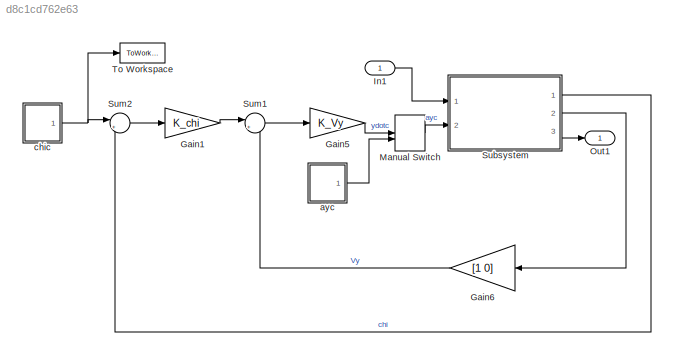
MODEL slx_d8c1cd762e63
KIND model
CONFIG AbsTol = auto
CONFIG EnableMultiTasking = off
CONFIG FixedStep = dt
CONFIG MaxStep = auto
CONFIG MinStep = auto
CONFIG RelTol = 1e-3
CONFIG SampleTimeConstraint = Unconstrained
CONFIG Solver = ode3
CONFIG SolverName = ode3
CONFIG StartTime = 0.0
CONFIG StopTime = t(end)
BLOCK [Gain] Gain1
  Gain = K_chi
  OutDataTypeStr = Inherit: Inherit via internal rule
  ParamDataTypeStr = Inherit: Inherit via internal rule
  SaturateOnIntegerOverflow = off
BLOCK [Gain] Gain5
  Gain = K_Vy
  OutDataTypeStr = Inherit: Inherit via internal rule
  ParamDataTypeStr = Inherit: Inherit via internal rule
  SaturateOnIntegerOverflow = off
BLOCK [Gain] Gain6
  Gain = [1 0]
  Multiplication = Matrix(K*u)
  OutDataTypeStr = Inherit: Inherit via internal rule
  ParamDataTypeStr = Inherit: Inherit via internal rule
  SaturateOnIntegerOverflow = off
BLOCK [Inport] In1
  IconDisplay = Port number
BLOCK [ManualSwitch] Manual Switch
BLOCK [Outport] Out1
  IconDisplay = Port number
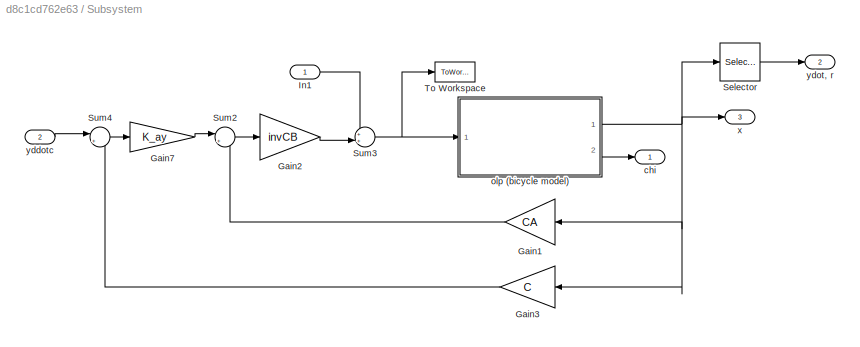
BLOCK [SubSystem] Subsystem
  Ports = [2, 3]
  RequestExecContextInheritance = off
BLOCK [Gain] Subsystem/Gain1
  Gain = CA
  Multiplication = Matrix(K*u)
  OutDataTypeStr = Inherit: Inherit via internal rule
  ParamDataTypeStr = Inherit: Inherit via internal rule
  SaturateOnIntegerOverflow = off
BLOCK [Gain] Subsystem/Gain2
  Gain = invCB
  Multiplication = Matrix(K*u)
  OutDataTypeStr = Inherit: Inherit via internal rule
  ParamDataTypeStr = Inherit: Inherit via internal rule
  SaturateOnIntegerOverflow = off
BLOCK [Gain] Subsystem/Gain3
  Gain = C
  Multiplication = Matrix(K*u)
  OutDataTypeStr = Inherit: Inherit via internal rule
  ParamDataTypeStr = Inherit: Inherit via internal rule
  SaturateOnIntegerOverflow = off
BLOCK [Gain] Subsystem/Gain7
  Gain = K_ay
  OutDataTypeStr = Inherit: Inherit via internal rule
  ParamDataTypeStr = Inherit: Inherit via internal rule
  SaturateOnIntegerOverflow = off
BLOCK [Inport] Subsystem/In1
  IconDisplay = Port number
BLOCK [Selector] Subsystem/Selector
  IndexOptions = Index vector (dialog)
  Indices = [1 2]
  InputPortWidth = 5
  OutputSizes = 1
  Ports = [1, 1]
BLOCK [Sum] Subsystem/Sum2
  IconShape = round
  InputSameDT = off
  Inputs = |+-
  OutDataTypeStr = Inherit: Inherit via internal rule
  Ports = [2, 1]
  SaturateOnIntegerOverflow = off
BLOCK [Sum] Subsystem/Sum3
  IconShape = round
  InputSameDT = off
  Inputs = ++|
  OutDataTypeStr = Inherit: Inherit via internal rule
  Ports = [2, 1]
  SaturateOnIntegerOverflow = off
BLOCK [Sum] Subsystem/Sum4
  IconShape = round
  InputSameDT = off
  Inputs = |+-
  OutDataTypeStr = Inherit: Inherit via internal rule
  Ports = [2, 1]
  SaturateOnIntegerOverflow = off
BLOCK [ToWorkspace] Subsystem/To Workspace
  FixptAsFi = on
  MaxDataPoints = inf
  Ports = [1]
  SampleTime = -1
  Save2DSignal = 3-D array (concatenate along third dimension)
  VariableName = delta
BLOCK [Outport] Subsystem/chi
  IconDisplay = Port number
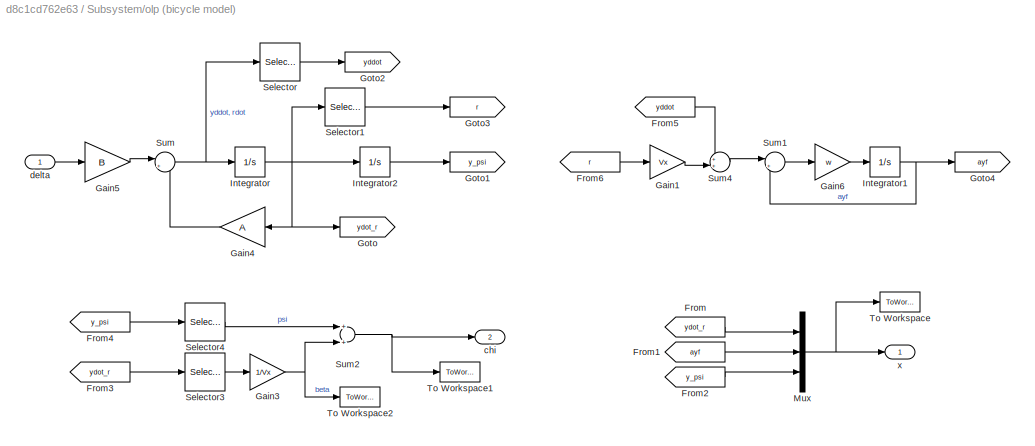
BLOCK [SubSystem] Subsystem/olp (bicycle model)
  Ports = [1, 2]
  RequestExecContextInheritance = off
BLOCK [From] Subsystem/olp (bicycle model)/From
  GotoTag = ydot_r
BLOCK [From] Subsystem/olp (bicycle model)/From1
  GotoTag = ayf
BLOCK [From] Subsystem/olp (bicycle model)/From2
  GotoTag = y_psi
BLOCK [From] Subsystem/olp (bicycle model)/From3
  GotoTag = ydot_r
BLOCK [From] Subsystem/olp (bicycle model)/From4
  GotoTag = y_psi
BLOCK [From] Subsystem/olp (bicycle model)/From5
  GotoTag = yddot
BLOCK [From] Subsystem/olp (bicycle model)/From6
  GotoTag = r
BLOCK [Gain] Subsystem/olp (bicycle model)/Gain1
  Gain = Vx
  OutDataTypeStr = Inherit: Inherit via internal rule
  ParamDataTypeStr = Inherit: Inherit via internal rule
  SaturateOnIntegerOverflow = off
BLOCK [Gain] Subsystem/olp (bicycle model)/Gain3
  Gain = 1/Vx
  OutDataTypeStr = Inherit: Inherit via internal rule
  ParamDataTypeStr = Inherit: Inherit via internal rule
  SaturateOnIntegerOverflow = off
BLOCK [Gain] Subsystem/olp (bicycle model)/Gain4
  Gain = A
  Multiplication = Matrix(K*u)
  OutDataTypeStr = Inherit: Inherit via internal rule
  ParamDataTypeStr = Inherit: Inherit via internal rule
  SaturateOnIntegerOverflow = off
BLOCK [Gain] Subsystem/olp (bicycle model)/Gain5
  Gain = B
  Multiplication = Matrix(K*u)
  OutDataTypeStr = Inherit: Inherit via internal rule
  ParamDataTypeStr = Inherit: Inherit via internal rule
  SaturateOnIntegerOverflow = off
BLOCK [Gain] Subsystem/olp (bicycle model)/Gain6
  Gain = w
  OutDataTypeStr = Inherit: Inherit via internal rule
  ParamDataTypeStr = Inherit: Inherit via internal rule
  SaturateOnIntegerOverflow = off
BLOCK [Goto] Subsystem/olp (bicycle model)/Goto
  GotoTag = ydot_r
BLOCK [Goto] Subsystem/olp (bicycle model)/Goto1
  GotoTag = y_psi
BLOCK [Goto] Subsystem/olp (bicycle model)/Goto2
  GotoTag = yddot
BLOCK [Goto] Subsystem/olp (bicycle model)/Goto3
  GotoTag = r
BLOCK [Goto] Subsystem/olp (bicycle model)/Goto4
  GotoTag = ayf
BLOCK [Integrator] Subsystem/olp (bicycle model)/Integrator
  InitialCondition = [0;0]
  Ports = [1, 1]
BLOCK [Integrator] Subsystem/olp (bicycle model)/Integrator1
  Ports = [1, 1]
BLOCK [Integrator] Subsystem/olp (bicycle model)/Integrator2
  InitialCondition = [0;0]
  Ports = [1, 1]
BLOCK [Mux] Subsystem/olp (bicycle model)/Mux
  DisplayOption = bar
  Inputs = 3
  Ports = [3, 1]
BLOCK [Selector] Subsystem/olp (bicycle model)/Selector
  IndexOptions = Index vector (dialog)
  Indices = 1
  InputPortWidth = 2
  OutputSizes = 1
  Ports = [1, 1]
BLOCK [Selector] Subsystem/olp (bicycle model)/Selector1
  IndexOptions = Index vector (dialog)
  Indices = 2
  InputPortWidth = 2
  OutputSizes = 1
  Ports = [1, 1]
BLOCK [Selector] Subsystem/olp (bicycle model)/Selector3
  IndexOptions = Index vector (dialog)
  Indices = 1
  InputPortWidth = 2
  OutputSizes = 1
  Ports = [1, 1]
BLOCK [Selector] Subsystem/olp (bicycle model)/Selector4
  IndexOptions = Index vector (dialog)
  Indices = 2
  InputPortWidth = 2
  OutputSizes = 1
  Ports = [1, 1]
BLOCK [Sum] Subsystem/olp (bicycle model)/Sum
  IconShape = round
  InputSameDT = off
  Inputs = |++
  OutDataTypeStr = Inherit: Inherit via internal rule
  Ports = [2, 1]
  SaturateOnIntegerOverflow = off
BLOCK [Sum] Subsystem/olp (bicycle model)/Sum1
  IconShape = round
  InputSameDT = off
  Inputs = |+-
  OutDataTypeStr = Inherit: Inherit via internal rule
  Ports = [2, 1]
  SaturateOnIntegerOverflow = off
BLOCK [Sum] Subsystem/olp (bicycle model)/Sum2
  InputSameDT = off
  OutDataTypeStr = Inherit: Inherit via internal rule
  Ports = [2, 1]
  SaturateOnIntegerOverflow = off
BLOCK [Sum] Subsystem/olp (bicycle model)/Sum4
  IconShape = round
  InputSameDT = off
  Inputs = ++|
  OutDataTypeStr = Inherit: Inherit via internal rule
  Ports = [2, 1]
  SaturateOnIntegerOverflow = off
BLOCK [ToWorkspace] Subsystem/olp (bicycle model)/To Workspace
  FixptAsFi = on
  MaxDataPoints = inf
  Ports = [1]
  SampleTime = -1
  Save2DSignal = 3-D array (concatenate along third dimension)
  VariableName = x
BLOCK [ToWorkspace] Subsystem/olp (bicycle model)/To Workspace1
  FixptAsFi = on
  MaxDataPoints = inf
  Ports = [1]
  SampleTime = -1
  Save2DSignal = 3-D array (concatenate along third dimension)
  VariableName = chi
BLOCK [ToWorkspace] Subsystem/olp (bicycle model)/To Workspace2
  FixptAsFi = on
  MaxDataPoints = inf
  Ports = [1]
  SampleTime = -1
  Save2DSignal = 3-D array (concatenate along third dimension)
  VariableName = beta
BLOCK [Outport] Subsystem/olp (bicycle model)/chi
  IconDisplay = Port number
  Port = 2
BLOCK [Inport] Subsystem/olp (bicycle model)/delta
  IconDisplay = Port number
BLOCK [Outport] Subsystem/olp (bicycle model)/x
  IconDisplay = Port number
BLOCK [Outport] Subsystem/x
  IconDisplay = Port number
  Port = 3
BLOCK [Inport] Subsystem/yddotc
  IconDisplay = Port number
  Port = 2
BLOCK [Outport] Subsystem/ydot, r
  IconDisplay = Port number
  Port = 2
BLOCK [Sum] Sum1
  IconShape = round
  InputSameDT = off
  Inputs = |+-
  OutDataTypeStr = Inherit: Inherit via internal rule
  Ports = [2, 1]
  SaturateOnIntegerOverflow = off
BLOCK [Sum] Sum2
  IconShape = round
  InputSameDT = off
  Inputs = |+-
  OutDataTypeStr = Inherit: Inherit via internal rule
  Ports = [2, 1]
  SaturateOnIntegerOverflow = off
BLOCK [ToWorkspace] To Workspace
  FixptAsFi = on
  MaxDataPoints = inf
  Ports = [1]
  SampleTime = -1
  Save2DSignal = 3-D array (concatenate along third dimension)
  VariableName = chic
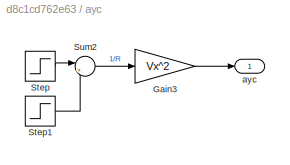
BLOCK [SubSystem] ayc
  Ports = [0, 1]
  RequestExecContextInheritance = off
BLOCK [Gain] ayc/Gain3
  Gain = Vx^2
  Multiplication = Matrix(K*u)
  OutDataTypeStr = Inherit: Inherit via internal rule
  ParamDataTypeStr = Inherit: Inherit via internal rule
  SaturateOnIntegerOverflow = off
BLOCK [Step] ayc/Step
  After = rho
  SampleTime = 0
BLOCK [Step] ayc/Step1
  After = rho
  SampleTime = 0
  Time = 5
BLOCK [Sum] ayc/Sum2
  IconShape = round
  InputSameDT = off
  Inputs = |+-
  OutDataTypeStr = Inherit: Inherit via internal rule
  Ports = [2, 1]
  SaturateOnIntegerOverflow = off
BLOCK [Outport] ayc/ayc
  IconDisplay = Port number
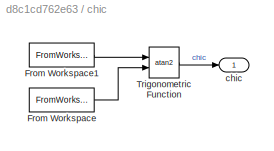
BLOCK [SubSystem] chic
  Ports = [0, 1]
  RequestExecContextInheritance = off
BLOCK [FromWorkspace] chic/From Workspace
  SampleTime = 0
  VariableName = sim_Nc
  ZeroCross = on
BLOCK [FromWorkspace] chic/From Workspace1
  SampleTime = 0
  VariableName = sim_Ec
  ZeroCross = on
BLOCK [Trigonometry] chic/Trigonometric Function
  Operator = atan2
  Ports = [2, 1]
BLOCK [Outport] chic/chic
  IconDisplay = Port number
LINE Gain1:1 -> Sum1:1
LINE Gain5:1 -> Manual Switch:1
LINE Gain6:1 -> Sum1:2
LINE In1:1 -> Subsystem:1
LINE Manual Switch:1 -> Subsystem:2
LINE Subsystem/Gain1:1 -> Subsystem/Sum2:2
LINE Subsystem/Gain2:1 -> Subsystem/Sum3:2
LINE Subsystem/Gain3:1 -> Subsystem/Sum4:2
LINE Subsystem/Gain7:1 -> Subsystem/Sum2:1
LINE Subsystem/In1:1 -> Subsystem/Sum3:1
LINE Subsystem/Selector:1 -> Subsystem/ydot, r:1
LINE Subsystem/Sum2:1 -> Subsystem/Gain2:1
NET Subsystem/Sum3:1 -> Subsystem/To Workspace:1, Subsystem/olp (bicycle model):1
LINE Subsystem/Sum4:1 -> Subsystem/Gain7:1
LINE Subsystem/olp (bicycle model)/From1:1 -> Subsystem/olp (bicycle model)/Mux:2
LINE Subsystem/olp (bicycle model)/From2:1 -> Subsystem/olp (bicycle model)/Mux:3
LINE Subsystem/olp (bicycle model)/From3:1 -> Subsystem/olp (bicycle model)/Selector3:1
LINE Subsystem/olp (bicycle model)/From4:1 -> Subsystem/olp (bicycle model)/Selector4:1
LINE Subsystem/olp (bicycle model)/From5:1 -> Subsystem/olp (bicycle model)/Sum4:1
LINE Subsystem/olp (bicycle model)/From6:1 -> Subsystem/olp (bicycle model)/Gain1:1
LINE Subsystem/olp (bicycle model)/From:1 -> Subsystem/olp (bicycle model)/Mux:1
LINE Subsystem/olp (bicycle model)/Gain1:1 -> Subsystem/olp (bicycle model)/Sum4:2
NET Subsystem/olp (bicycle model)/Gain3:1 -> Subsystem/olp (bicycle model)/Sum2:2, Subsystem/olp (bicycle model)/To Workspace2:1
LINE Subsystem/olp (bicycle model)/Gain4:1 -> Subsystem/olp (bicycle model)/Sum:2
LINE Subsystem/olp (bicycle model)/Gain5:1 -> Subsystem/olp (bicycle model)/Sum:1
LINE Subsystem/olp (bicycle model)/Gain6:1 -> Subsystem/olp (bicycle model)/Integrator1:1
NET Subsystem/olp (bicycle model)/Integrator1:1 -> Subsystem/olp (bicycle model)/Goto4:1, Subsystem/olp (bicycle model)/Sum1:2
LINE Subsystem/olp (bicycle model)/Integrator2:1 -> Subsystem/olp (bicycle model)/Goto1:1
NET Subsystem/olp (bicycle model)/Integrator:1 -> Subsystem/olp (bicycle model)/Gain4:1, Subsystem/olp (bicycle model)/Goto:1, Subsystem/olp (bicycle model)/Integrator2:1, Subsystem/olp (bicycle model)/Selector1:1
NET Subsystem/olp (bicycle model)/Mux:1 -> Subsystem/olp (bicycle model)/To Workspace:1, Subsystem/olp (bicycle model)/x:1
LINE Subsystem/olp (bicycle model)/Selector1:1 -> Subsystem/olp (bicycle model)/Goto3:1
LINE Subsystem/olp (bicycle model)/Selector3:1 -> Subsystem/olp (bicycle model)/Gain3:1
LINE Subsystem/olp (bicycle model)/Selector4:1 -> Subsystem/olp (bicycle model)/Sum2:1
LINE Subsystem/olp (bicycle model)/Selector:1 -> Subsystem/olp (bicycle model)/Goto2:1
LINE Subsystem/olp (bicycle model)/Sum1:1 -> Subsystem/olp (bicycle model)/Gain6:1
NET Subsystem/olp (bicycle model)/Sum2:1 -> Subsystem/olp (bicycle model)/To Workspace1:1, Subsystem/olp (bicycle model)/chi:1
LINE Subsystem/olp (bicycle model)/Sum4:1 -> Subsystem/olp (bicycle model)/Sum1:1
NET Subsystem/olp (bicycle model)/Sum:1 -> Subsystem/olp (bicycle model)/Integrator:1, Subsystem/olp (bicycle model)/Selector:1
LINE Subsystem/olp (bicycle model)/delta:1 -> Subsystem/olp (bicycle model)/Gain5:1
NET Subsystem/olp (bicycle model):1 -> Subsystem/Gain1:1, Subsystem/Gain3:1, Subsystem/Selector:1, Subsystem/x:1
LINE Subsystem/olp (bicycle model):2 -> Subsystem/chi:1
LINE Subsystem/yddotc:1 -> Subsystem/Sum4:1
LINE Subsystem:1 -> Sum2:2
LINE Subsystem:2 -> Gain6:1
LINE Subsystem:3 -> Out1:1
LINE Sum1:1 -> Gain5:1
LINE Sum2:1 -> Gain1:1
LINE ayc/Gain3:1 -> ayc/ayc:1
LINE ayc/Step1:1 -> ayc/Sum2:2
LINE ayc/Step:1 -> ayc/Sum2:1
LINE ayc/Sum2:1 -> ayc/Gain3:1
LINE ayc:1 -> Manual Switch:2
LINE chic/From Workspace1:1 -> chic/Trigonometric Function:1
LINE chic/From Workspace:1 -> chic/Trigonometric Function:2
LINE chic/Trigonometric Function:1 -> chic/chic:1
NET chic:1 -> Sum2:1, To Workspace:1
note: NET lines group one-source signal fan-out (src -> all destinations, sorted); 1:1 wires keep LINE
